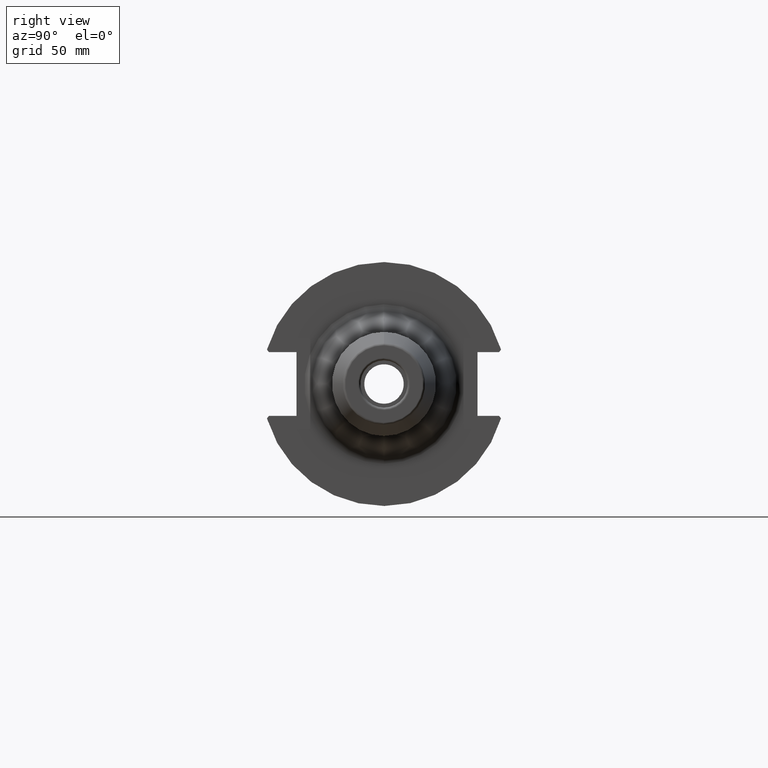
[diagram: clean part render]
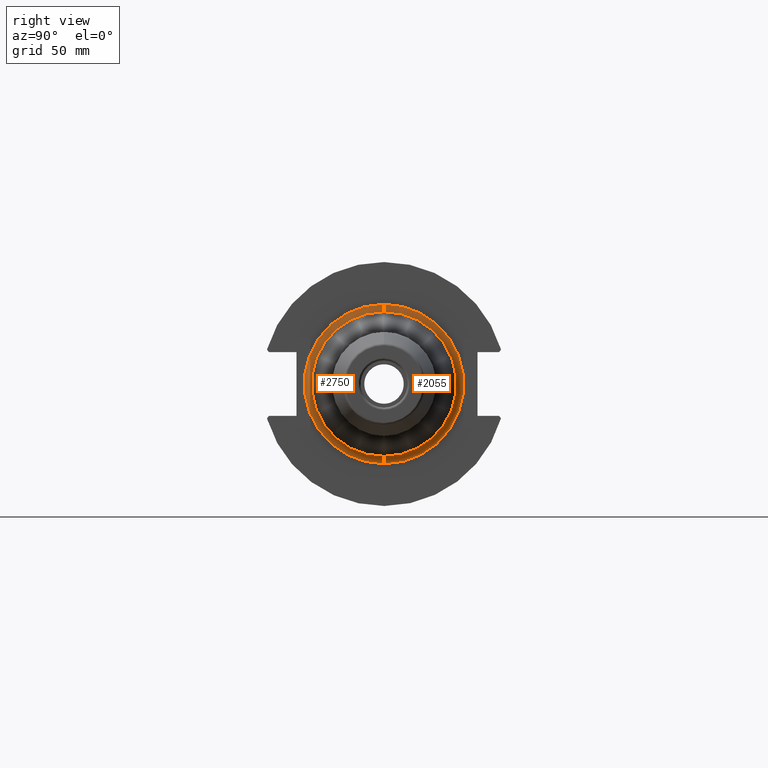
[diagram: same view with one multi-face feature highlighted, each face labeled with its STEP entity id]
A machine part, right view. The highlighted faces form ONE feature: a constant-radius fillet chain: 2 tangent blend faces with common blend radius 3 mm. The faces share edges in the B-rep.
Their STEP definitions:
[1] entity #2750 (Torus):
#526=CARTESIAN_POINT('',(1.905E1,0.E0,0.E0));
#527=DIRECTION('',(1.E0,0.E0,0.E0));
#528=DIRECTION('',(0.E0,0.E0,1.E0));
#529=AXIS2_PLACEMENT_3D('',#526,#527,#528);
#1010=CARTESIAN_POINT('',(2.205E1,0.E0,3.217382408856E1));
#1011=DIRECTION('',(0.E0,1.E0,0.E0));
#1012=DIRECTION('',(-1.391731009601E-1,0.E0,-9.902680687416E-1));
#1013=AXIS2_PLACEMENT_3D('',#1010,#1011,#1012);
#1015=CARTESIAN_POINT('',(2.163248069712E1,0.E0,0.E0));
#1016=DIRECTION('',(-1.E0,0.E0,0.E0));
#1017=DIRECTION('',(0.E0,0.E0,-1.E0));
#1018=AXIS2_PLACEMENT_3D('',#1015,#1016,#1017);
#1020=CARTESIAN_POINT('',(2.205E1,0.E0,-3.217382408856E1));
#1021=DIRECTION('',(0.E0,-1.E0,0.E0));
#1022=DIRECTION('',(-1.391731009601E-1,0.E0,9.902680687416E-1));
#1023=AXIS2_PLACEMENT_3D('',#1020,#1021,#1022);
#1263=CARTESIAN_POINT('',(2.163248069712E1,0.E0,-2.920301988233E1));
#1264=VERTEX_POINT('',#1263);
#1287=CARTESIAN_POINT('',(2.163248069712E1,0.E0,2.920301988233E1));
#1288=VERTEX_POINT('',#1287);
#1309=CARTESIAN_POINT('',(1.905E1,0.E0,-3.217382408856E1));
#1310=CARTESIAN_POINT('',(1.905E1,0.E0,3.217382408856E1));
#1311=VERTEX_POINT('',#1309);
#1312=VERTEX_POINT('',#1310);
#2739=CARTESIAN_POINT('',(2.205E1,0.E0,0.E0));
#2740=DIRECTION('',(1.E0,0.E0,0.E0));
#2741=DIRECTION('',(0.E0,0.E0,1.E0));
#2742=AXIS2_PLACEMENT_3D('',#2739,#2740,#2741);
#2743=TOROIDAL_SURFACE('',#2742,3.217382408856E1,3.E0);
#2744=ORIENTED_EDGE('',*,*,#2088,.F.);
#2745=ORIENTED_EDGE('',*,*,#2051,.F.);
#2746=ORIENTED_EDGE('',*,*,#2020,.F.);
#2747=ORIENTED_EDGE('',*,*,#2048,.T.);
#2748=EDGE_LOOP('',(#2744,#2745,#2746,#2747));
#2749=FACE_OUTER_BOUND('',#2748,.F.);
#2750=ADVANCED_FACE('',(#2749),#2743,.F.);
#530=CIRCLE('',#529,3.217382408856E1);
#1014=CIRCLE('',#1013,3.E0);
#1019=CIRCLE('',#1018,2.920301988233E1);
#1024=CIRCLE('',#1023,3.E0);
#2020=EDGE_CURVE('',#1264,#1288,#1019,.T.);
#2048=EDGE_CURVE('',#1264,#1311,#1024,.T.);
#2051=EDGE_CURVE('',#1288,#1312,#1014,.T.);
#2088=EDGE_CURVE('',#1312,#1311,#530,.T.);
[2] entity #2055 (Torus):
#476=CARTESIAN_POINT('',(2.163248069712E1,0.E0,0.E0));
#477=DIRECTION('',(1.E0,0.E0,0.E0));
#478=DIRECTION('',(0.E0,0.E0,-1.E0));
#479=AXIS2_PLACEMENT_3D('',#476,#477,#478);
#521=CARTESIAN_POINT('',(1.905E1,0.E0,0.E0));
#522=DIRECTION('',(1.E0,0.E0,0.E0));
#523=DIRECTION('',(0.E0,0.E0,-1.E0));
#524=AXIS2_PLACEMENT_3D('',#521,#522,#523);
#1010=CARTESIAN_POINT('',(2.205E1,0.E0,3.217382408856E1));
#1011=DIRECTION('',(0.E0,1.E0,0.E0));
#1012=DIRECTION('',(-1.391731009601E-1,0.E0,-9.902680687416E-1));
#1013=AXIS2_PLACEMENT_3D('',#1010,#1011,#1012);
#1020=CARTESIAN_POINT('',(2.205E1,0.E0,-3.217382408856E1));
#1021=DIRECTION('',(0.E0,-1.E0,0.E0));
#1022=DIRECTION('',(-1.391731009601E-1,0.E0,9.902680687416E-1));
#1023=AXIS2_PLACEMENT_3D('',#1020,#1021,#1022);
#1263=CARTESIAN_POINT('',(2.163248069712E1,0.E0,-2.920301988233E1));
#1264=VERTEX_POINT('',#1263);
#1287=CARTESIAN_POINT('',(2.163248069712E1,0.E0,2.920301988233E1));
#1288=VERTEX_POINT('',#1287);
#1309=CARTESIAN_POINT('',(1.905E1,0.E0,-3.217382408856E1));
#1310=CARTESIAN_POINT('',(1.905E1,0.E0,3.217382408856E1));
#1311=VERTEX_POINT('',#1309);
#1312=VERTEX_POINT('',#1310);
#2041=CARTESIAN_POINT('',(2.205E1,0.E0,0.E0));
#2042=DIRECTION('',(1.E0,0.E0,0.E0));
#2043=DIRECTION('',(0.E0,0.E0,1.E0));
#2044=AXIS2_PLACEMENT_3D('',#2041,#2042,#2043);
#2045=TOROIDAL_SURFACE('',#2044,3.217382408856E1,3.E0);
#2047=ORIENTED_EDGE('',*,*,#2046,.F.);
#2049=ORIENTED_EDGE('',*,*,#2048,.F.);
#2050=ORIENTED_EDGE('',*,*,#2036,.T.);
#2052=ORIENTED_EDGE('',*,*,#2051,.T.);
#2053=EDGE_LOOP('',(#2047,#2049,#2050,#2052));
#2054=FACE_OUTER_BOUND('',#2053,.F.);
#2055=ADVANCED_FACE('',(#2054),#2045,.F.);
#480=CIRCLE('',#479,2.920301988233E1);
#525=CIRCLE('',#524,3.217382408856E1);
#1014=CIRCLE('',#1013,3.E0);
#1024=CIRCLE('',#1023,3.E0);
#2036=EDGE_CURVE('',#1264,#1288,#480,.T.);
#2046=EDGE_CURVE('',#1311,#1312,#525,.T.);
#2048=EDGE_CURVE('',#1264,#1311,#1024,.T.);
#2051=EDGE_CURVE('',#1288,#1312,#1014,.T.);